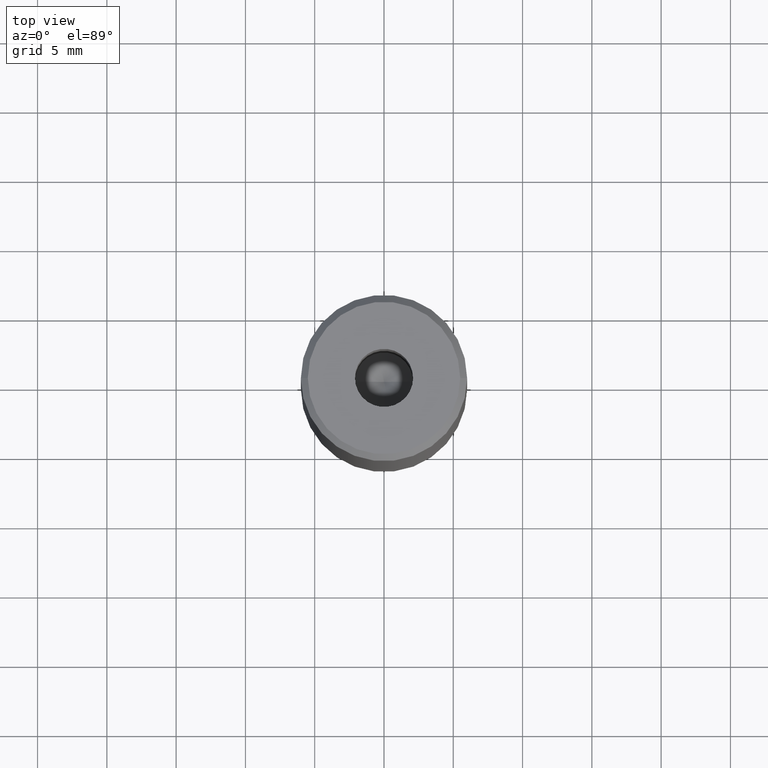
[diagram: clean part render]
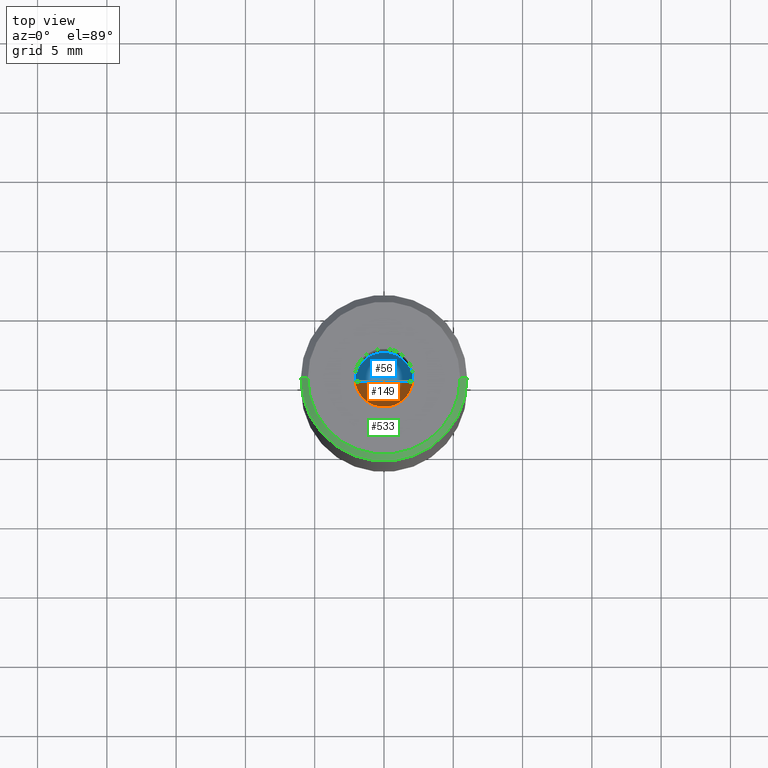
[diagram: same view with three faces highlighted in distinct colors, each labeled with its STEP entity id]
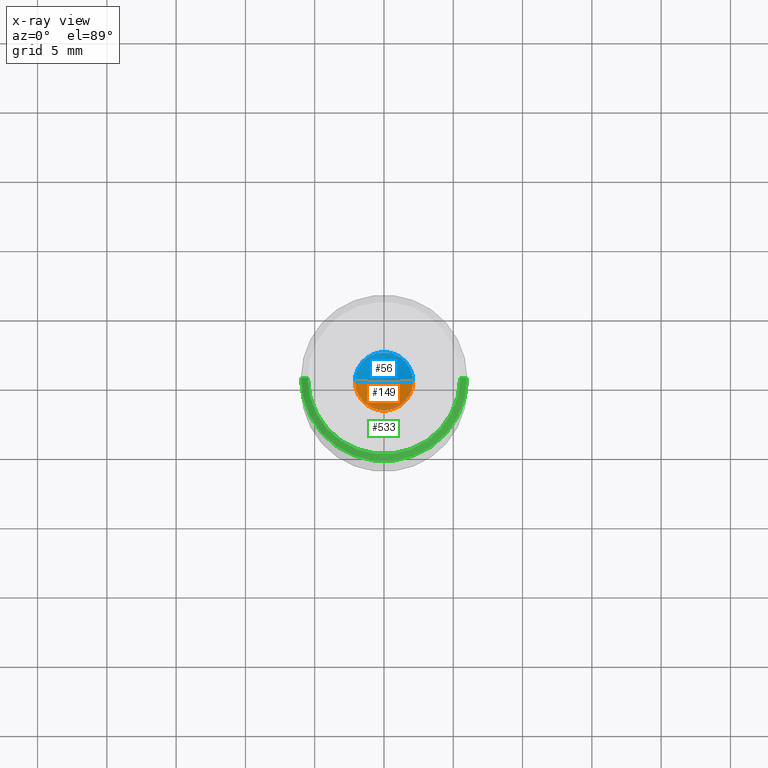
[diagram: x-ray of the same camera — body ghosted, the three highlighted faces saturated]
A machine part, top view with three faces highlighted in distinct colors.
The next image is the same camera in x-ray (body ghosted, the three faces saturated) — at least one of them is partly hidden behind the body in this view.
Their STEP definitions:

[orange] entity #149 — the highlighted conical surface has half-angle 59 deg.
#57 = CARTESIAN_POINT ( 'NONE',  ( -2.099999999999996980, 2.571758278209438013E-16, -15.00000000000000000 ) ) ;
#62 = DIRECTION ( 'NONE',  ( -0.000000000000000000, -0.000000000000000000, 1.000000000000000000 ) ) ;
#91 = CARTESIAN_POINT ( 'NONE',  ( 2.099999999999996980, 0.000000000000000000, -15.00000000000000000 ) ) ;
#99 = CARTESIAN_POINT ( 'NONE',  ( -2.099999999999996980, 2.571758278209438013E-16, -15.00000000000000000 ) ) ;
#104 = EDGE_LOOP ( 'NONE', ( #288, #529, #181 ) ) ;
#111 = VERTEX_POINT ( 'NONE', #174 ) ;
#149 = ADVANCED_FACE ( 'NONE', ( #215 ), #243, .F. ) ;
#159 = CARTESIAN_POINT ( 'NONE',  ( -3.982994051648894933E-15, 0.000000000000000000, -16.26180729995787644 ) ) ;
#174 = CARTESIAN_POINT ( 'NONE',  ( 2.099999999999996980, 0.000000000000000000, -15.00000000000000000 ) ) ;
#181 = ORIENTED_EDGE ( 'NONE', *, *, #367, .T. ) ;
#184 = AXIS2_PLACEMENT_3D ( 'NONE', #305, #484, #219 ) ;
#214 = EDGE_CURVE ( 'NONE', #410, #111, #494, .T. ) ;
#215 = FACE_OUTER_BOUND ( 'NONE', #104, .T. ) ;
#219 = DIRECTION ( 'NONE',  ( 1.000000000000000000, 0.000000000000000000, 0.000000000000000000 ) ) ;
#226 = DIRECTION ( 'NONE',  ( -0.8571673007021113344, 1.049727191138617463E-16, 0.5150380749100558209 ) ) ;
#243 = CONICAL_SURFACE ( 'NONE', #184, 2.099999999999996980, 1.029744258676652535 ) ;
#269 = DIRECTION ( 'NONE',  ( 0.8571673007021113344, 0.000000000000000000, 0.5150380749100558209 ) ) ;
#278 = VERTEX_POINT ( 'NONE', #99 ) ;
#288 = ORIENTED_EDGE ( 'NONE', *, *, #214, .F. ) ;
#299 = EDGE_CURVE ( 'NONE', #410, #278, #326, .T. ) ;
#305 = CARTESIAN_POINT ( 'NONE',  ( 0.000000000000000000, 0.000000000000000000, -15.00000000000000000 ) ) ;
#318 = AXIS2_PLACEMENT_3D ( 'NONE', #329, #62, #402 ) ;
#326 = LINE ( 'NONE', #57, #586 ) ;
#329 = CARTESIAN_POINT ( 'NONE',  ( 0.000000000000000000, 0.000000000000000000, -15.00000000000000000 ) ) ;
#367 = EDGE_CURVE ( 'NONE', #278, #111, #585, .T. ) ;
#387 = VECTOR ( 'NONE', #269, 1000.000000000000000 ) ;
#402 = DIRECTION ( 'NONE',  ( 1.000000000000000000, 0.000000000000000000, 0.000000000000000000 ) ) ;
#410 = VERTEX_POINT ( 'NONE', #159 ) ;
#484 = DIRECTION ( 'NONE',  ( -0.000000000000000000, -0.000000000000000000, 1.000000000000000000 ) ) ;
#494 = LINE ( 'NONE', #91, #387 ) ;
#529 = ORIENTED_EDGE ( 'NONE', *, *, #299, .T. ) ;
#585 = CIRCLE ( 'NONE', #318, 2.099999999999996980 ) ;
#586 = VECTOR ( 'NONE', #226, 1000.000000000000000 ) ;

[blue] entity #56 — the highlighted conical surface has half-angle 59 deg.
#12 = CIRCLE ( 'NONE', #217, 2.099999999999996980 ) ;
#17 = DIRECTION ( 'NONE',  ( -0.000000000000000000, -0.000000000000000000, 1.000000000000000000 ) ) ;
#29 = ORIENTED_EDGE ( 'NONE', *, *, #425, .T. ) ;
#56 = ADVANCED_FACE ( 'NONE', ( #167 ), #339, .F. ) ;
#57 = CARTESIAN_POINT ( 'NONE',  ( -2.099999999999996980, 2.571758278209438013E-16, -15.00000000000000000 ) ) ;
#71 = CARTESIAN_POINT ( 'NONE',  ( 0.000000000000000000, 0.000000000000000000, -15.00000000000000000 ) ) ;
#73 = DIRECTION ( 'NONE',  ( 1.000000000000000000, 0.000000000000000000, 0.000000000000000000 ) ) ;
#91 = CARTESIAN_POINT ( 'NONE',  ( 2.099999999999996980, 0.000000000000000000, -15.00000000000000000 ) ) ;
#99 = CARTESIAN_POINT ( 'NONE',  ( -2.099999999999996980, 2.571758278209438013E-16, -15.00000000000000000 ) ) ;
#111 = VERTEX_POINT ( 'NONE', #174 ) ;
#159 = CARTESIAN_POINT ( 'NONE',  ( -3.982994051648894933E-15, 0.000000000000000000, -16.26180729995787644 ) ) ;
#165 = DIRECTION ( 'NONE',  ( 1.000000000000000000, 0.000000000000000000, 0.000000000000000000 ) ) ;
#167 = FACE_OUTER_BOUND ( 'NONE', #498, .T. ) ;
#174 = CARTESIAN_POINT ( 'NONE',  ( 2.099999999999996980, 0.000000000000000000, -15.00000000000000000 ) ) ;
#212 = DIRECTION ( 'NONE',  ( -0.000000000000000000, -0.000000000000000000, 1.000000000000000000 ) ) ;
#214 = EDGE_CURVE ( 'NONE', #410, #111, #494, .T. ) ;
#217 = AXIS2_PLACEMENT_3D ( 'NONE', #71, #17, #165 ) ;
#218 = ORIENTED_EDGE ( 'NONE', *, *, #299, .F. ) ;
#226 = DIRECTION ( 'NONE',  ( -0.8571673007021113344, 1.049727191138617463E-16, 0.5150380749100558209 ) ) ;
#269 = DIRECTION ( 'NONE',  ( 0.8571673007021113344, 0.000000000000000000, 0.5150380749100558209 ) ) ;
#278 = VERTEX_POINT ( 'NONE', #99 ) ;
#285 = ORIENTED_EDGE ( 'NONE', *, *, #214, .T. ) ;
#299 = EDGE_CURVE ( 'NONE', #410, #278, #326, .T. ) ;
#326 = LINE ( 'NONE', #57, #586 ) ;
#339 = CONICAL_SURFACE ( 'NONE', #501, 2.099999999999996980, 1.029744258676652535 ) ;
#387 = VECTOR ( 'NONE', #269, 1000.000000000000000 ) ;
#410 = VERTEX_POINT ( 'NONE', #159 ) ;
#425 = EDGE_CURVE ( 'NONE', #111, #278, #12, .T. ) ;
#494 = LINE ( 'NONE', #91, #387 ) ;
#498 = EDGE_LOOP ( 'NONE', ( #218, #285, #29 ) ) ;
#501 = AXIS2_PLACEMENT_3D ( 'NONE', #523, #212, #73 ) ;
#523 = CARTESIAN_POINT ( 'NONE',  ( 0.000000000000000000, 0.000000000000000000, -15.00000000000000000 ) ) ;
#586 = VECTOR ( 'NONE', #226, 1000.000000000000000 ) ;

[green] entity #533 — the highlighted conical surface has half-angle 45 deg.
#36 = DIRECTION ( 'NONE',  ( -0.7071067811865474617, 0.000000000000000000, -0.7071067811865474617 ) ) ;
#45 = DIRECTION ( 'NONE',  ( 0.7071067811865474617, 8.659560562354932858E-17, -0.7071067811865474617 ) ) ;
#46 = CARTESIAN_POINT ( 'NONE',  ( 5.499999999999990230, 7.041719095097274963E-16, 0.000000000000000000 ) ) ;
#49 = CIRCLE ( 'NONE', #129, 6.000000000000000000 ) ;
#60 = VECTOR ( 'NONE', #36, 1000.000000000000114 ) ;
#78 = DIRECTION ( 'NONE',  ( 0.000000000000000000, 0.000000000000000000, -1.000000000000000000 ) ) ;
#98 = ORIENTED_EDGE ( 'NONE', *, *, #571, .F. ) ;
#108 = CARTESIAN_POINT ( 'NONE',  ( 0.000000000000000000, 0.000000000000000000, 0.000000000000000000 ) ) ;
#112 = DIRECTION ( 'NONE',  ( 1.000000000000000000, 0.000000000000000000, 0.000000000000000000 ) ) ;
#124 = CARTESIAN_POINT ( 'NONE',  ( 0.000000000000000000, 0.000000000000000000, -0.5000000000000099920 ) ) ;
#129 = AXIS2_PLACEMENT_3D ( 'NONE', #124, #467, #112 ) ;
#134 = DIRECTION ( 'NONE',  ( -1.000000000000000000, 0.000000000000000000, 0.000000000000000000 ) ) ;
#143 = ORIENTED_EDGE ( 'NONE', *, *, #503, .T. ) ;
#146 = CONICAL_SURFACE ( 'NONE', #331, 5.499999999999990230, 0.7853981633974482790 ) ;
#172 = CARTESIAN_POINT ( 'NONE',  ( -5.499999999999990230, 0.000000000000000000, 0.000000000000000000 ) ) ;
#175 = AXIS2_PLACEMENT_3D ( 'NONE', #108, #284, #461 ) ;
#188 = CARTESIAN_POINT ( 'NONE',  ( -6.000000000000000000, 7.347880794884119736E-16, -0.5000000000000099920 ) ) ;
#193 = VERTEX_POINT ( 'NONE', #46 ) ;
#198 = VERTEX_POINT ( 'NONE', #578 ) ;
#284 = DIRECTION ( 'NONE',  ( -0.000000000000000000, -0.000000000000000000, 1.000000000000000000 ) ) ;
#301 = CIRCLE ( 'NONE', #175, 5.499999999999990230 ) ;
#312 = ORIENTED_EDGE ( 'NONE', *, *, #342, .F. ) ;
#331 = AXIS2_PLACEMENT_3D ( 'NONE', #534, #78, #134 ) ;
#342 = EDGE_CURVE ( 'NONE', #460, #193, #301, .T. ) ;
#353 = FACE_OUTER_BOUND ( 'NONE', #506, .T. ) ;
#370 = VERTEX_POINT ( 'NONE', #188 ) ;
#395 = EDGE_CURVE ( 'NONE', #198, #370, #49, .T. ) ;
#434 = LINE ( 'NONE', #445, #587 ) ;
#445 = CARTESIAN_POINT ( 'NONE',  ( 5.499999999999990230, 6.735557395310430190E-16, 0.000000000000000000 ) ) ;
#460 = VERTEX_POINT ( 'NONE', #517 ) ;
#461 = DIRECTION ( 'NONE',  ( 1.000000000000000000, 0.000000000000000000, 0.000000000000000000 ) ) ;
#467 = DIRECTION ( 'NONE',  ( 0.000000000000000000, 0.000000000000000000, -1.000000000000000000 ) ) ;
#503 = EDGE_CURVE ( 'NONE', #460, #370, #577, .T. ) ;
#506 = EDGE_LOOP ( 'NONE', ( #98, #312, #143, #582 ) ) ;
#517 = CARTESIAN_POINT ( 'NONE',  ( -5.499999999999990230, 0.000000000000000000, 0.000000000000000000 ) ) ;
#533 = ADVANCED_FACE ( 'NONE', ( #353 ), #146, .T. ) ;
#534 = CARTESIAN_POINT ( 'NONE',  ( 0.000000000000000000, 0.000000000000000000, 0.000000000000000000 ) ) ;
#571 = EDGE_CURVE ( 'NONE', #193, #198, #434, .T. ) ;
#577 = LINE ( 'NONE', #172, #60 ) ;
#578 = CARTESIAN_POINT ( 'NONE',  ( 6.000000000000000000, 0.000000000000000000, -0.5000000000000099920 ) ) ;
#582 = ORIENTED_EDGE ( 'NONE', *, *, #395, .F. ) ;
#587 = VECTOR ( 'NONE', #45, 1000.000000000000114 ) ;